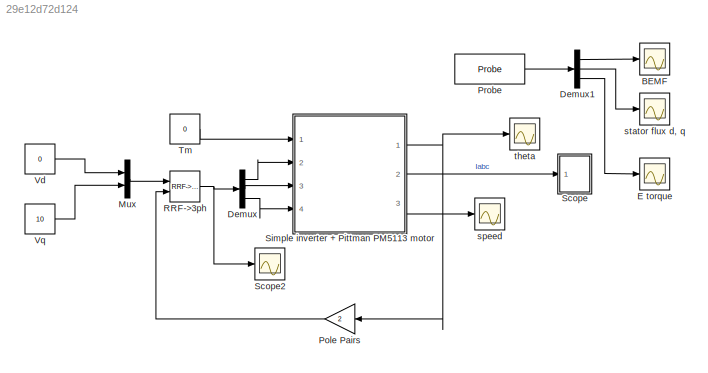
MODEL slx_29e12d72d124
KIND model
CONFIG AbsTol = auto
CONFIG FixedStep = auto
CONFIG MaxStep = auto
CONFIG MinStep = auto
CONFIG RelTol = 1e-3
CONFIG SampleTimeConstraint = Unconstrained
CONFIG Solver = ode23s
CONFIG SolverMode = Auto
CONFIG SolverName = ode23s
CONFIG StartTime = 0.0
CONFIG StopTime = 0.1
BLOCK [Scope] BEMF
  Ports = [1]
  ScopeSpecificationString = Simulink.scopes.TimeScopeBlockCfg('CurrentConfiguration', extmgr.ConfigurationSet(extmgr.Configuration('Core','General UI',true),extmgr.Configuration('Core','Source UI',true),extmgr.Configuration('Sources','WiredSimulink',true,'DataLoggingVariableName','ScopeData3'),extmgr.Configuration('Visuals','Time Domain',true,'SerializedDisplays',{struct('MinYLimReal','-12.47614','MaxYLimReal','12.47673','YL...<+1501ch>
BLOCK [Demux] Demux
  DisplayOption = bar
  Outputs = [1 1 1]
  Ports = [1, 3]
BLOCK [Demux] Demux1
  DisplayOption = bar
  Outputs = [3 2 1]
  Ports = [1, 3]
BLOCK [Scope] E torque
  Ports = [1]
  ScopeSpecificationString = Simulink.scopes.TimeScopeBlockCfg('CurrentConfiguration', extmgr.ConfigurationSet(extmgr.Configuration('Core','General UI',true),extmgr.Configuration('Core','Source UI',true),extmgr.Configuration('Sources','WiredSimulink',true,'DataLoggingVariableName','ScopeData4'),extmgr.Configuration('Visuals','Time Domain',true,'SerializedDisplays',{struct('MinYLimReal','-0.05692','MaxYLimReal','0.51229','YLab...<+1467ch>
BLOCK [Mux] Mux
  DisplayOption = bar
  Inputs = 2
  Ports = [2, 1]
BLOCK [Gain] Pole Pairs
  Gain = 2
  OutDataTypeStr = Inherit: Inherit via internal rule
  ParamDataTypeStr = Inherit: Inherit via internal rule
  SaturateOnIntegerOverflow = off
BLOCK [Reference] Probe  REF=plecslib/Probe
  Ports = [0, 1]
  SourceBlock = plecslib/Probe
  SourceType = PlecsProbe
BLOCK [Reference] RRF->3ph  REF=plecslib_extras/Transformations/RRF->3ph
  Ports = [2, 1]
  SourceBlock = plecslib_extras/Transformations/RRF->3ph
  SourceType = Transformation RRF->3ph
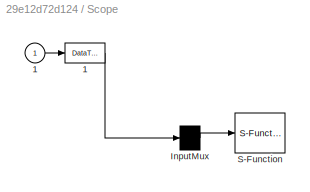
BLOCK [SubSystem] Scope
  CopyFcn = plecs('sl', 303);
  DeleteFcn = plecs('sl', 305);
  DestroyFcn = plecs('sl', 307);
  ErrorFcn = plerrorfcn
  InitFcn = plecs('sl', 314);
  LoadFcn = plecs('sl', 300);
  NameChangeFcn = plecs('sl', 310);
  OpenFcn = plecs('sl', 302);
  Ports = [1]
  PreSaveFcn = plecs('sl', 311);
  RequestExecContextInheritance = off
  StartFcn = plecs('sl', 308);
  StopFcn = plecs('sl', 309);
  UndoDeleteFcn = plecs('sl', 306);
  Variant = off
BLOCK [DataTypeConversion] Scope/ 1 
BLOCK [Mux] Scope/ InputMux 
  Inputs = 1
  Ports = [1, 1]
BLOCK [S-Function] Scope/ S-Function 
  EnableBusSupport = off
  FunctionName = plecs
  Ports = [1]
  SFunctionDeploymentMode = off
BLOCK [Inport] Scope/1
  IconDisplay = Port number
BLOCK [Scope] Scope2
  Ports = [1]
  ScopeSpecificationString = Simulink.scopes.TimeScopeBlockCfg('CurrentConfiguration', extmgr.ConfigurationSet(extmgr.Configuration('Core','General UI',true),extmgr.Configuration('Core','Source UI',true),extmgr.Configuration('Sources','WiredSimulink',true,'DataLoggingVariableName','ScopeData1'),extmgr.Configuration('Visuals','Time Domain',true,'SerializedDisplays',{struct('MinYLimReal','-12.49604','MaxYLimReal','12.49849','YL...<+1472ch>
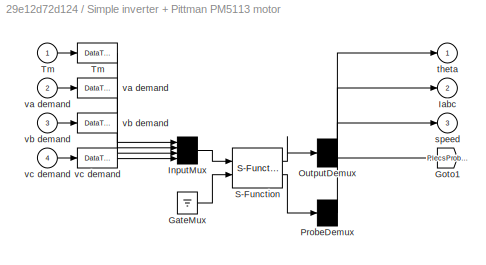
BLOCK [SubSystem] Simple inverter + Pittman PM5113 motor
  CopyFcn = plecs('sl', 203);
  DeleteFcn = plecs('sl', 205);
  DestroyFcn = plecs('sl', 207);
  ErrorFcn = plerrorfcn
  InitFcn = plecs('sl', 214);
  LoadFcn = plecs('sl', 200);
  NameChangeFcn = plecs('sl', 210);
  OpenFcn = plecs('sl', 202);
  Ports = [4, 3]
  PostSaveFcn = plecs('sl', 201);
  PreCopyFcn = plecs('sl', 216);
  PreSaveFcn = plecs('sl', 211);
  RequestExecContextInheritance = off
  StartFcn = plecs('sl', 208);
  StopFcn = plecs('sl', 209);
  UndoDeleteFcn = plecs('sl', 206);
  Variant = off
BLOCK [Ground] Simple inverter + Pittman PM5113 motor/ GateMux 
BLOCK [Goto] Simple inverter + Pittman PM5113 motor/ Goto1
  GotoTag = PlecsProbe1
  TagVisibility = global
BLOCK [Mux] Simple inverter + Pittman PM5113 motor/ InputMux 
  Inputs = [ 1 1 1 1 ]
  Ports = [4, 1]
BLOCK [Demux] Simple inverter + Pittman PM5113 motor/ OutputDemux 
  Outputs = [ 1 3 1 ]
  Ports = [1, 3]
BLOCK [Demux] Simple inverter + Pittman PM5113 motor/ ProbeDemux 
  Outputs = [ 6 ]
  Ports = [1, 1]
BLOCK [S-Function] Simple inverter + Pittman PM5113 motor/ S-Function 
  EnableBusSupport = off
  FunctionName = plecs
  Ports = [2, 2]
  SFunctionDeploymentMode = off
BLOCK [DataTypeConversion] Simple inverter + Pittman PM5113 motor/ Tm 
BLOCK [DataTypeConversion] Simple inverter + Pittman PM5113 motor/ va demand 
BLOCK [DataTypeConversion] Simple inverter + Pittman PM5113 motor/ vb demand 
BLOCK [DataTypeConversion] Simple inverter + Pittman PM5113 motor/ vc demand 
BLOCK [Outport] Simple inverter + Pittman PM5113 motor/Iabc
  IconDisplay = Port number
  Port = 2
  PortDimensions = 3
BLOCK [Inport] Simple inverter + Pittman PM5113 motor/Tm
  IconDisplay = Port number
  PortDimensions = 1
BLOCK [Outport] Simple inverter + Pittman PM5113 motor/speed
  IconDisplay = Port number
  Port = 3
  PortDimensions = 1
BLOCK [Outport] Simple inverter + Pittman PM5113 motor/theta
  IconDisplay = Port number
  PortDimensions = 1
BLOCK [Inport] Simple inverter + Pittman PM5113 motor/va demand
  IconDisplay = Port number
  Port = 2
  PortDimensions = 1
BLOCK [Inport] Simple inverter + Pittman PM5113 motor/vb demand
  IconDisplay = Port number
  Port = 3
  PortDimensions = 1
BLOCK [Inport] Simple inverter + Pittman PM5113 motor/vc demand
  IconDisplay = Port number
  Port = 4
  PortDimensions = 1
BLOCK [Constant] Tm
  Value = 0
BLOCK [Constant] Vd
  Value = 0
BLOCK [Constant] Vq
  Value = 10
BLOCK [Scope] speed
  Ports = [1]
  ScopeSpecificationString = Simulink.scopes.TimeScopeBlockCfg('CurrentConfiguration', extmgr.ConfigurationSet(extmgr.Configuration('Core','General UI',true),extmgr.Configuration('Core','Source UI',true),extmgr.Configuration('Sources','WiredSimulink',true,'DataLoggingVariableName','ScopeData5'),extmgr.Configuration('Visuals','Time Domain',true,'SerializedDisplays',{struct('MinYLimReal','-7.21218','MaxYLimReal','64.90965','YLa...<+1505ch>
BLOCK [Scope] stator flux d, q
  Ports = [1]
  ScopeSpecificationString = Simulink.scopes.TimeScopeBlockCfg('CurrentConfiguration', extmgr.ConfigurationSet(extmgr.Configuration('Core','General UI',true),extmgr.Configuration('Core','Source UI',true),extmgr.Configuration('Sources','WiredSimulink',true,'DataLoggingVariableName','ScopeData1'),extmgr.Configuration('Visuals','Time Domain',true,'SerializedDisplays',{struct('MinYLimReal','0.07832','MaxYLimReal','0.09229','YLabe...<+1451ch>
BLOCK [Scope] theta
  Ports = [1]
  ScopeSpecificationString = Simulink.scopes.TimeScopeBlockCfg('CurrentConfiguration', extmgr.ConfigurationSet(extmgr.Configuration('Core','General UI',true),extmgr.Configuration('Core','Source UI',true),extmgr.Configuration('Sources','WiredSimulink',true,'DataLoggingVariableName','ScopeData2'),extmgr.Configuration('Visuals','Time Domain',true,'SerializedDisplays',{struct('MinYLimReal','-0.69164','MaxYLimReal','6.22479','YLab...<+1501ch>
LINE Demux1:1 -> BEMF:1
LINE Demux1:2 -> stator flux d, q:1
LINE Demux1:3 -> E torque:1
LINE Demux:1 -> Simple inverter + Pittman PM5113 motor:2
LINE Demux:2 -> Simple inverter + Pittman PM5113 motor:3
LINE Demux:3 -> Simple inverter + Pittman PM5113 motor:4
LINE Mux:1 -> RRF->3ph:1
LINE Pole Pairs:1 -> RRF->3ph:2
LINE Probe:1 -> Demux1:1
NET RRF->3ph:1 -> Demux:1, Scope2:1
LINE Scope/ 1 :1 -> Scope/ InputMux :1
LINE Scope/ InputMux :1 -> Scope/ S-Function :1
LINE Scope/1:1 -> Scope/ 1 :1
NET Simple inverter + Pittman PM5113 motor:1 -> Pole Pairs:1, theta:1
LINE Simple inverter + Pittman PM5113 motor:2 -> Scope:1
LINE Simple inverter + Pittman PM5113 motor:3 -> speed:1
LINE Tm:1 -> Simple inverter + Pittman PM5113 motor:1
LINE Vd:1 -> Mux:1
LINE Vq:1 -> Mux:2
note: NET lines group one-source signal fan-out (src -> all destinations, sorted); 1:1 wires keep LINE
